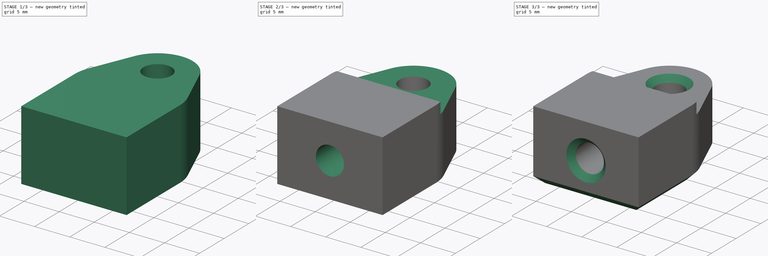
[diagram: build sequence overview — one tinted view per stage of 3, left to right]
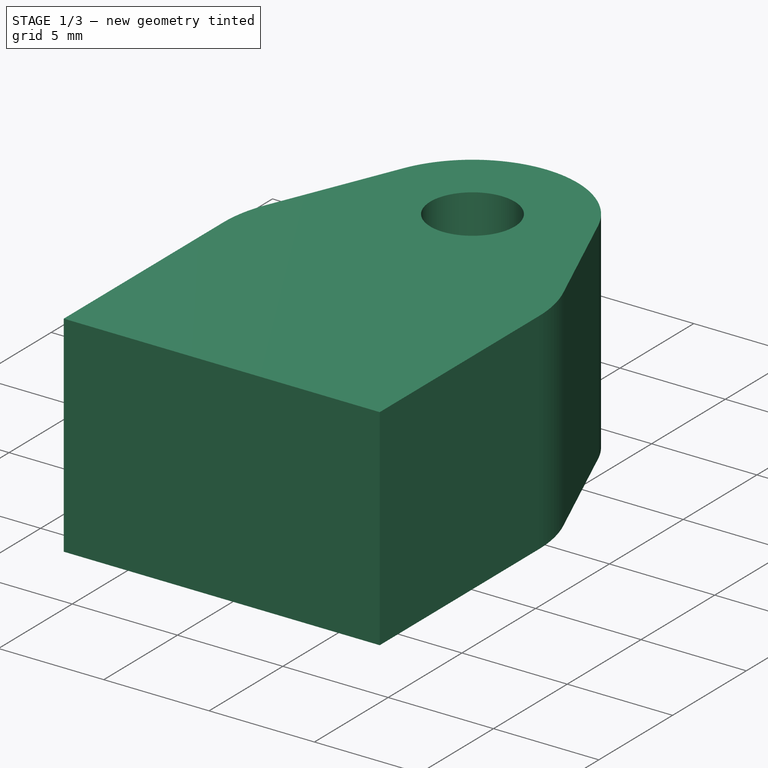
[diagram: stage 1 of 3 — iso view after this stage's code; geometry added in this stage tinted green]
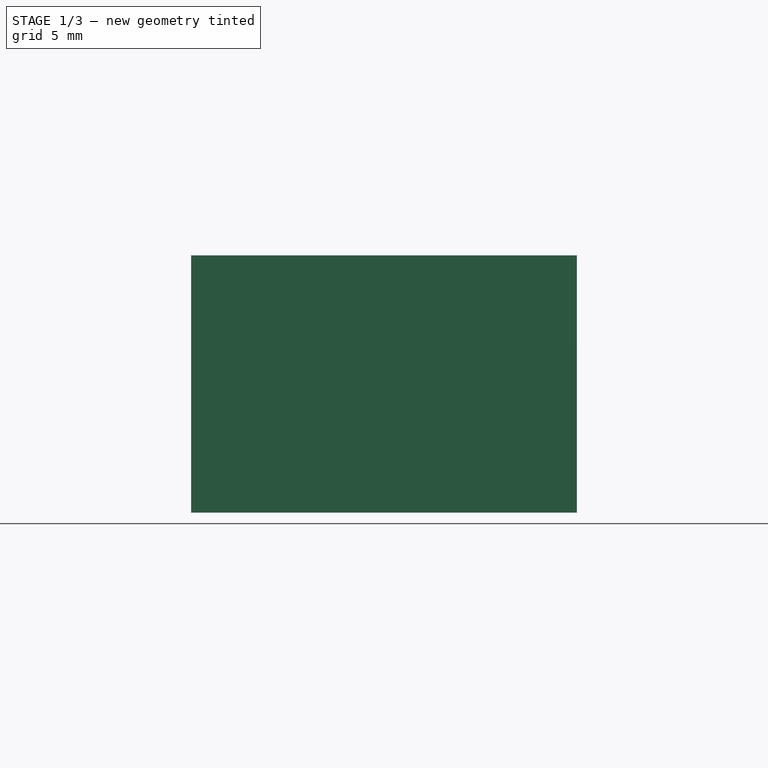
[diagram: stage 1 of 3 — front view after this stage's code; geometry added in this stage tinted green]
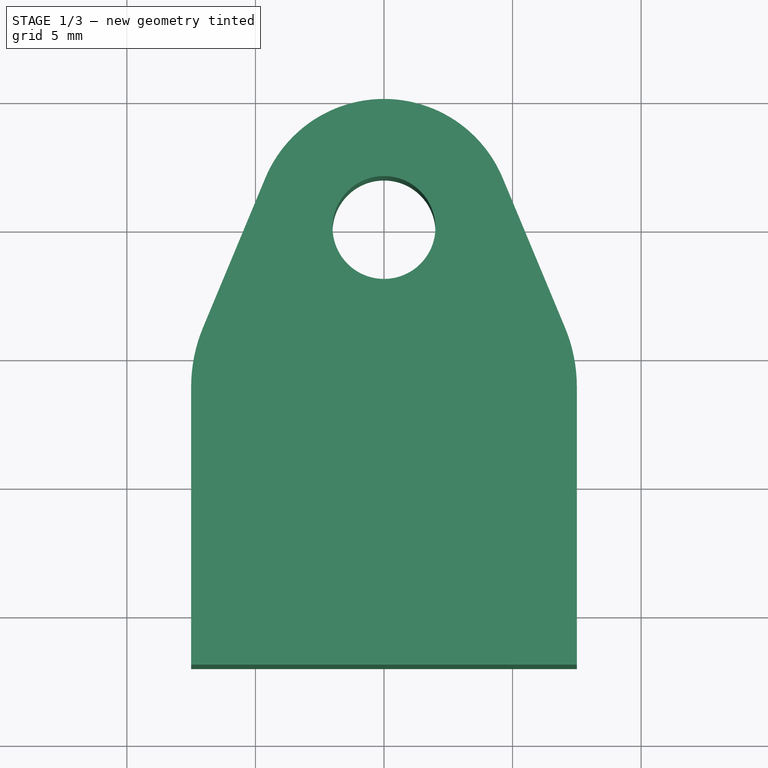
[diagram: stage 1 of 3 — top view after this stage's code; geometry added in this stage tinted green]
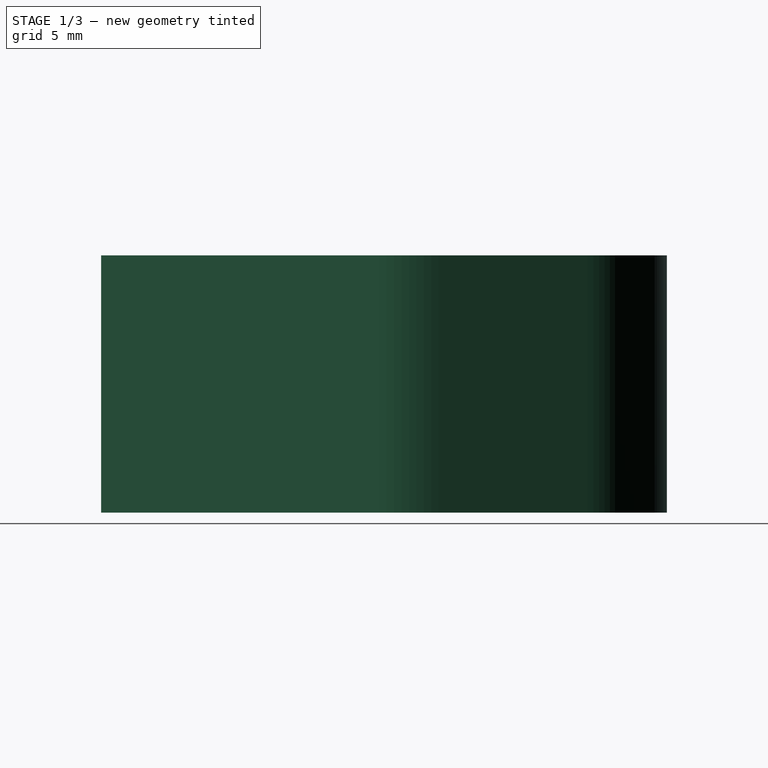
[diagram: stage 1 of 3 — right view after this stage's code; geometry added in this stage tinted green]
FCSTD DOCUMENT  (FreeCAD 0.19R23141 (Git))
Label: bracket
License: All rights reserved
LicenseURL: http://en.wikipedia.org/wiki/All_rights_reserved
objects: Sketcher::SketchObject×3, PartDesign::Pocket×2, PartDesign::Chamfer×2, PartDesign::Pad×1, PartDesign::Fillet×1, PartDesign::Body×1
note: 16 computed .brp shape members not serialized (recipe doc carries the construction recipe); baked Part::Feature solids carry a one-line shape summary decoded from their .brp

FEATURE [Sketcher::SketchObject] Sketch
  MapMode = 5
  Support = -> [XY_Plane]
  sketch-geometry (7):
    g0: Circle CenterX=0 CenterY=0 CenterZ=0 NormalX=0 NormalY=0 NormalZ=1 AngleXU=0 Radius=2
    g1: ArcOfCircle CenterX=0 CenterY=0 CenterZ=0 NormalX=0 NormalY=0 NormalZ=1 AngleXU=0 Radius=5 StartAngle=0.394791 EndAngle=2.7468
    g2: LineSegment StartX=-4.61538 StartY=1.92308 StartZ=0 EndX=-7.5 EndY=-5 EndZ=0
    g3: LineSegment StartX=7.5 StartY=-5 StartZ=0 EndX=4.61538 EndY=1.92308 EndZ=0
    g4: LineSegment StartX=-7.5 StartY=-5 StartZ=0 EndX=-7.5 EndY=-17 EndZ=0
    g5: LineSegment StartX=-7.5 StartY=-17 StartZ=0 EndX=7.5 EndY=-17 EndZ=0
    g6: LineSegment StartX=7.5 StartY=-17 StartZ=0 EndX=7.5 EndY=-5 EndZ=0
  constraints (18):
    c: Coincident(g0,g-1)
    c: Radius(g0) = 2
    c: Coincident(g1,g0)
    c: Horizontal(g1,g1)
    c: Tangent(g2,g1) = -1.5708
    c: Tangent(g3,g1) = -1.5708
    c: DistanceY(g2,g0) = 5
    c: Radius(g1) = 5
    c: DistanceX(g2,g3) = 15
    c: Coincident(g2,g4)
    c: Vertical(g4)
    c: Coincident(g4,g5)
    c: Horizontal(g5)
    c: Coincident(g5,g6)
    c: Coincident(g6,g3)
    c: Vertical(g6)
    c: DistanceY(g4,g4) = 12
    c: Horizontal(g3,g2)
FEATURE [PartDesign::Pad] Pad
  Direction = (1,1,1)
  Length = 10
  Length2 = 100
  Midplane = true
  Profile = -> Sketch
  Refine = true
  Type = 0
FEATURE [PartDesign::Fillet] Fillet
  Base = -> Pad [Edge5,Edge14]
  BaseFeature = -> Pad
  Radius = 6
  Refine = true
  SupportTransform = false
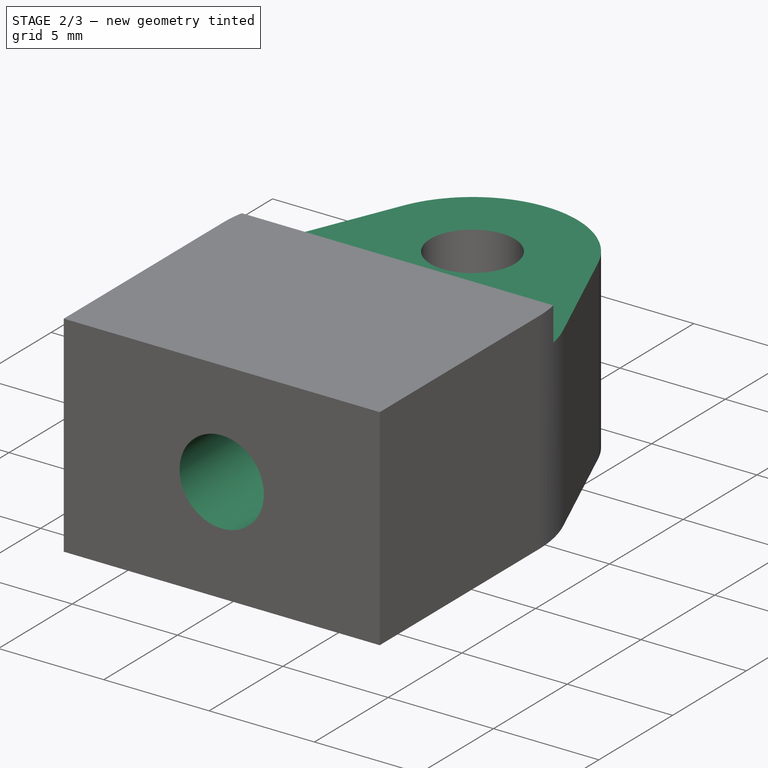
[diagram: stage 2 of 3 — iso view after this stage's code; geometry added in this stage tinted green]
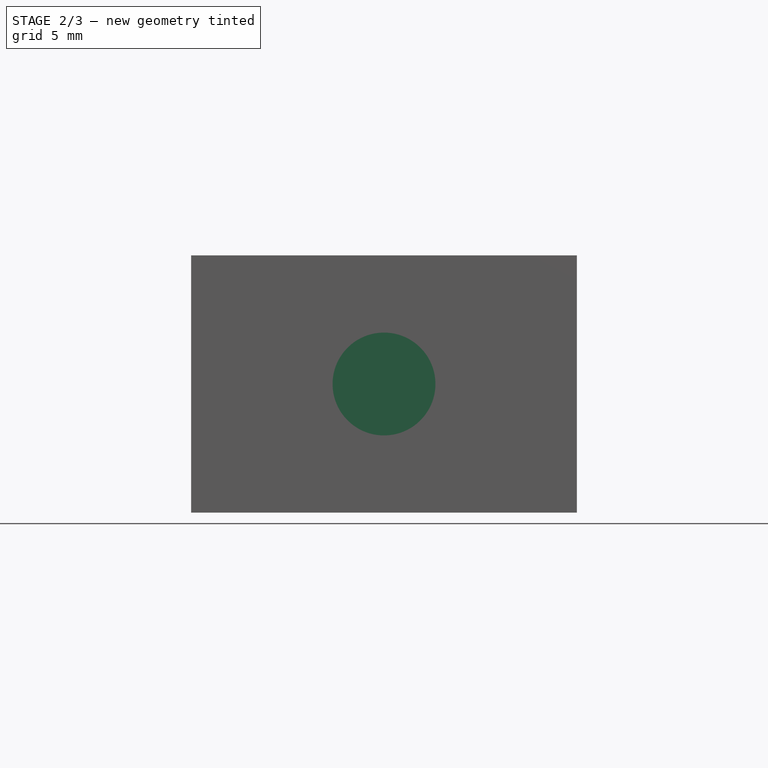
[diagram: stage 2 of 3 — front view after this stage's code; geometry added in this stage tinted green]
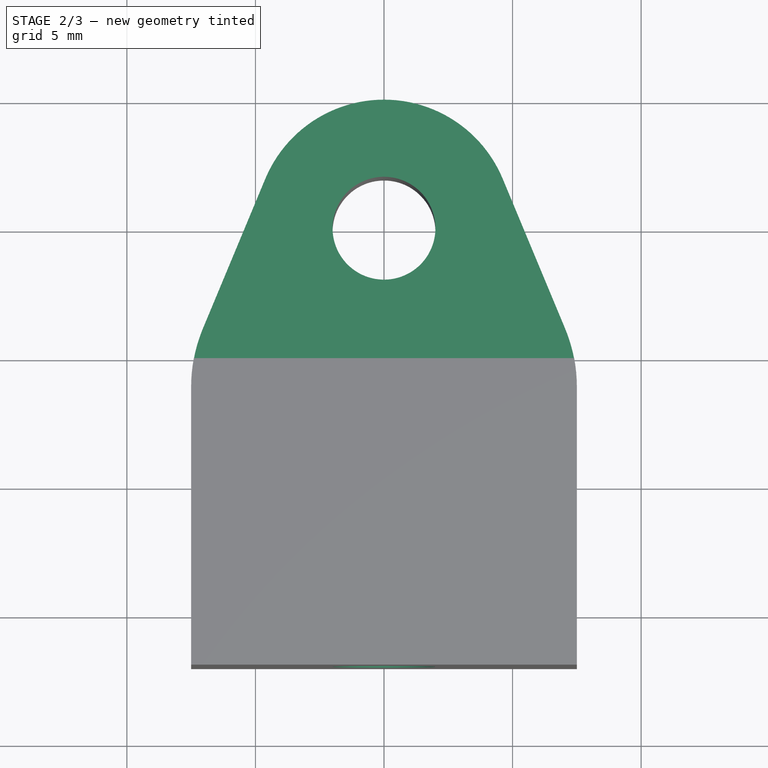
[diagram: stage 2 of 3 — top view after this stage's code; geometry added in this stage tinted green]
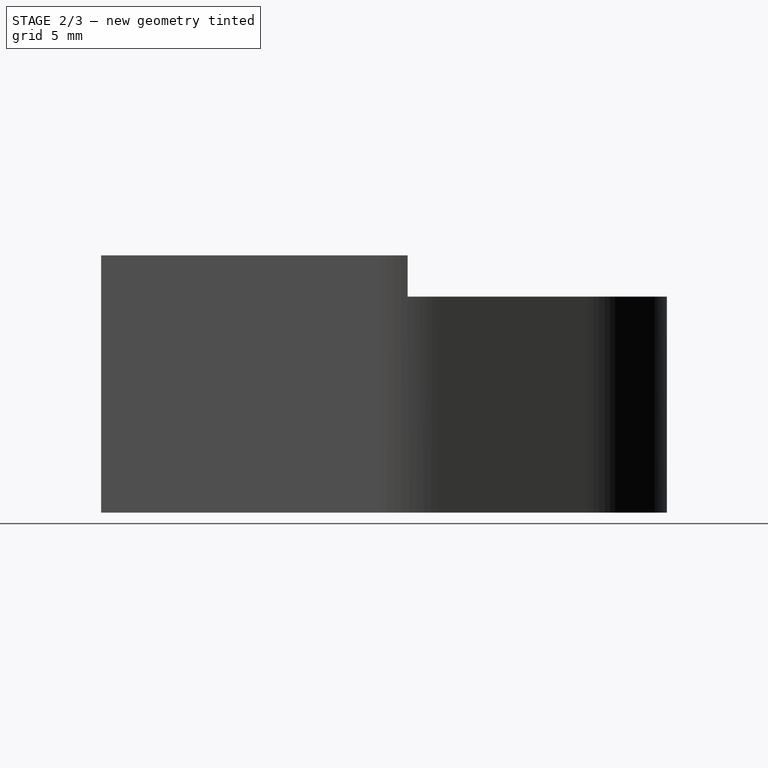
[diagram: stage 2 of 3 — right view after this stage's code; geometry added in this stage tinted green]
FEATURE [Sketcher::SketchObject] Sketch001
  MapMode = 5
  Placement = pos=(0,-17,0) rot=(1,0,0;1.5708rad)
  Support = -> [Fillet]
  sketch-geometry (1):
    g0: Circle CenterX=0 CenterY=0 CenterZ=0 NormalX=0 NormalY=0 NormalZ=1 AngleXU=0 Radius=2
  constraints (2):
    c: Coincident(g0,g-1)
    c: Radius(g0) = 2
FEATURE [PartDesign::Pocket] Pocket
  BaseFeature = -> Fillet
  Length = 10
  Length2 = 100
  Profile = -> Sketch001
  Refine = true
  Type = 0
FEATURE [Sketcher::SketchObject] Sketch002
  ExternalGeometry = -> [Pad]
  MapMode = 5
  Placement = pos=(0,0,5) rot=(0,0,1;0rad)
  Support = -> [Pad]
  sketch-geometry (4):
    g0: LineSegment StartX=-7.5 StartY=5.08 StartZ=0 EndX=7.5 EndY=5.08 EndZ=0
    g1: LineSegment StartX=7.5 StartY=5.08 StartZ=0 EndX=7.5 EndY=-5.08 EndZ=0
    g2: LineSegment StartX=7.5 StartY=-5.08 StartZ=0 EndX=-7.5 EndY=-5.08 EndZ=0
    g3: LineSegment StartX=-7.5 StartY=-5.08 StartZ=0 EndX=-7.5 EndY=5.08 EndZ=0
  constraints (11):
    c: Coincident(g0,g1)
    c: Coincident(g1,g2)
    c: Coincident(g2,g3)
    c: Coincident(g3,g0)
    c: Horizontal(g0)
    c: Horizontal(g2)
    c: Vertical(g1)
    c: DistanceY(g2,g-1) = 5.08
    c: PointOnObject(g-4,g1)
    c: PointOnObject(g-3,g3)
    c: Symmetric(g2,g0,g-1)
FEATURE [PartDesign::Pocket] Pocket001
  BaseFeature = -> Pocket
  Length = 1.6
  Length2 = 100
  Profile = -> Sketch002
  Refine = true
  Type = 0
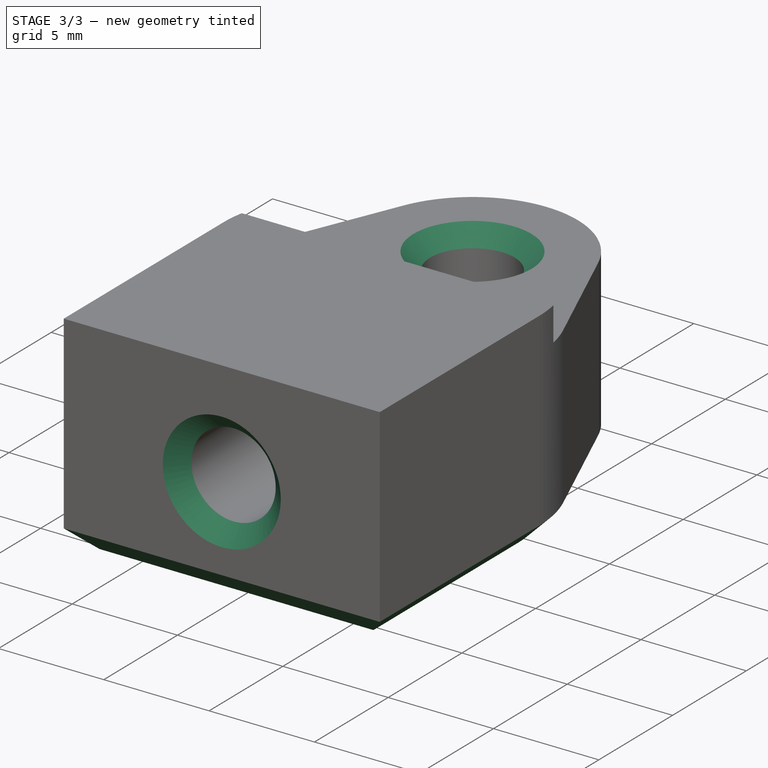
[diagram: stage 3 of 3 — iso view after this stage's code; geometry added in this stage tinted green]
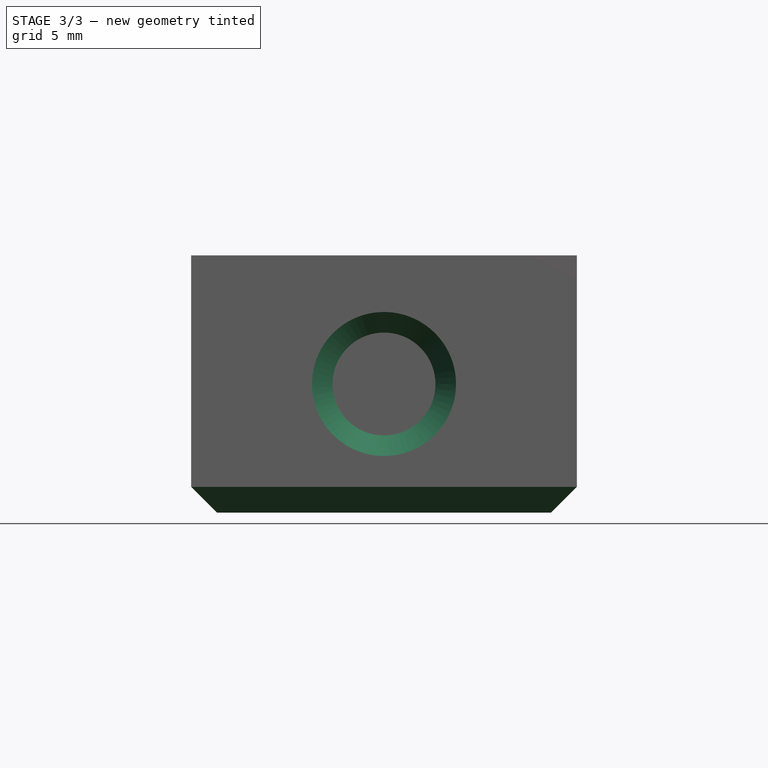
[diagram: stage 3 of 3 — front view after this stage's code; geometry added in this stage tinted green]
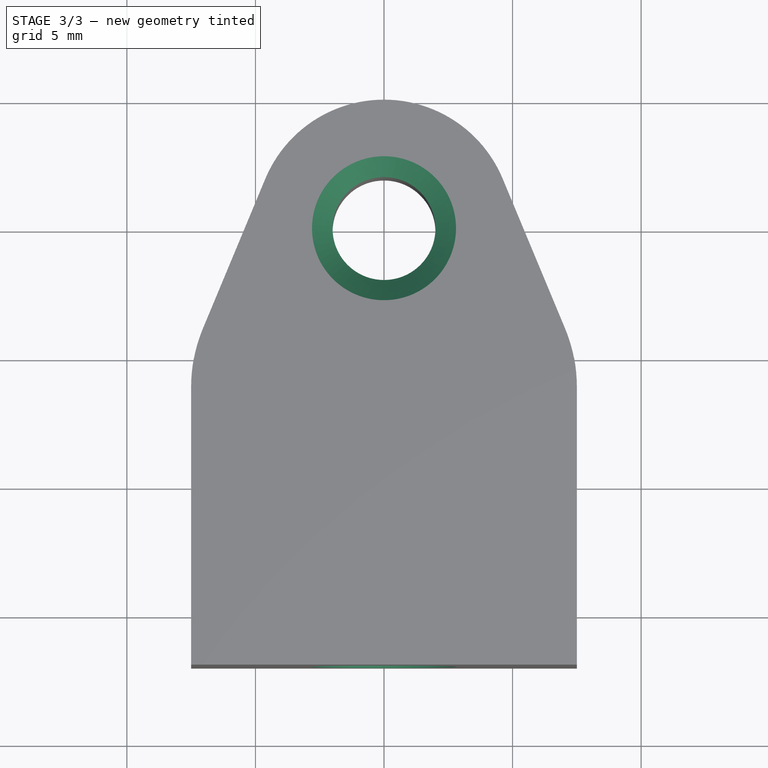
[diagram: stage 3 of 3 — top view after this stage's code; geometry added in this stage tinted green]
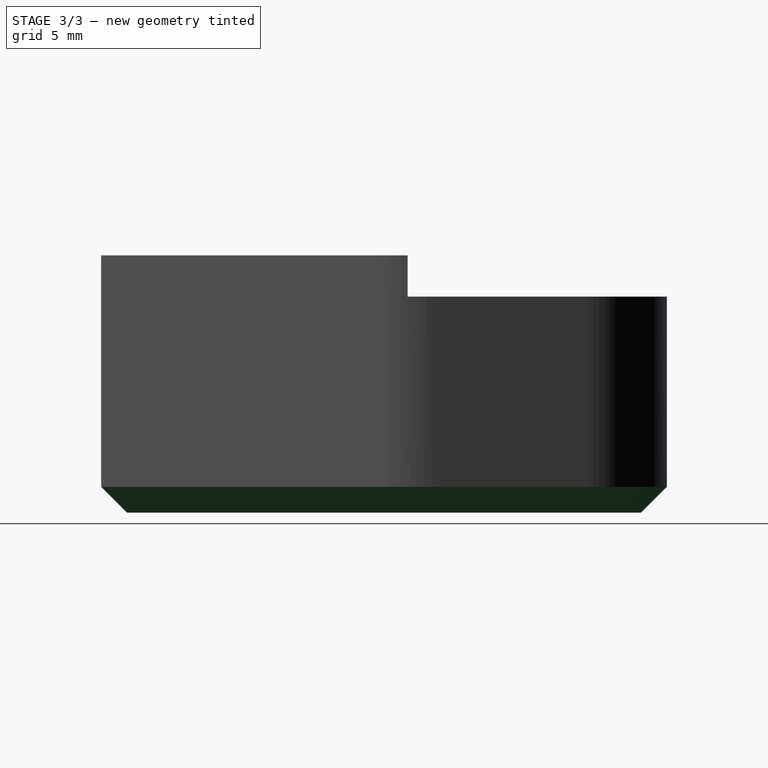
[diagram: stage 3 of 3 — right view after this stage's code; geometry added in this stage tinted green]
FEATURE [PartDesign::Chamfer] Chamfer
  Angle = 45
  Base = -> Pocket001 [Edge14,Edge34]
  BaseFeature = -> Pocket001
  ChamferType = 0
  FlipDirection = false
  Refine = true
  Size = 0.8
  Size2 = 1
  SupportTransform = false
FEATURE [PartDesign::Chamfer] Chamfer001
  Angle = 45
  Base = -> Chamfer [Edge33,Edge25,Edge34,Edge31]
  BaseFeature = -> Chamfer
  ChamferType = 0
  FlipDirection = false
  Refine = true
  Size = 1
  Size2 = 1
  SupportTransform = false
FEATURE [PartDesign::Body] Body
  Group = -> [Sketch,Pad,Fillet,Sketch001,Pocket,Sketch002,Pocket001,Chamfer,Chamfer001]
  Origin = -> Origin
  Tip = -> Chamfer001
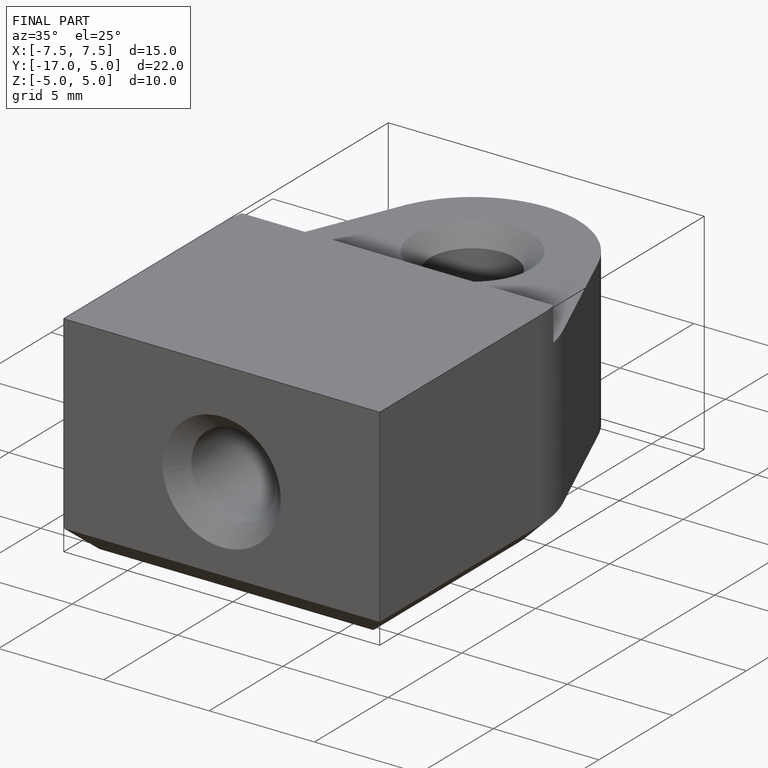
[diagram: finished part — iso view with bounding-box wireframe]
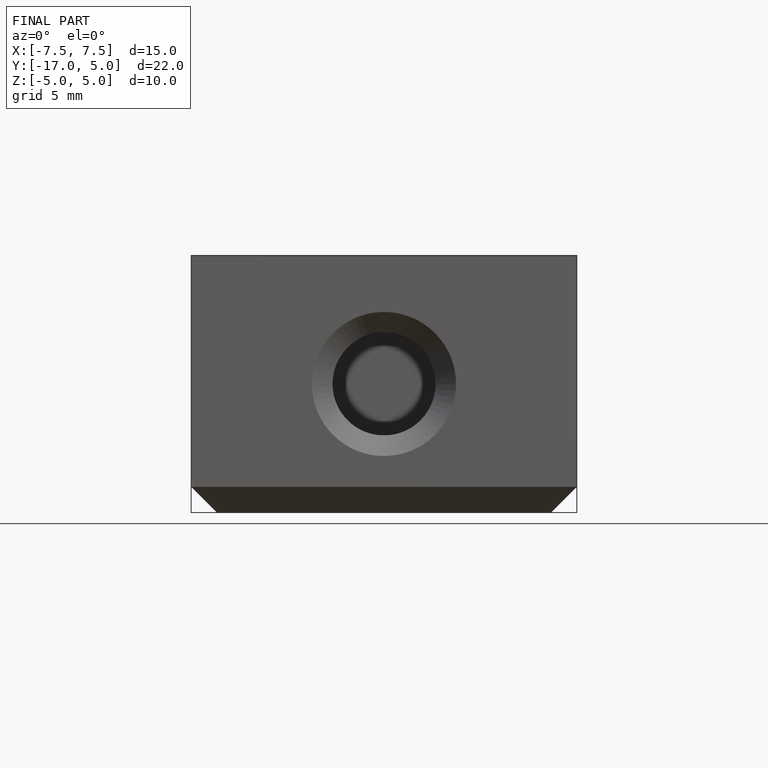
[diagram: finished part — front view with bounding-box wireframe]
